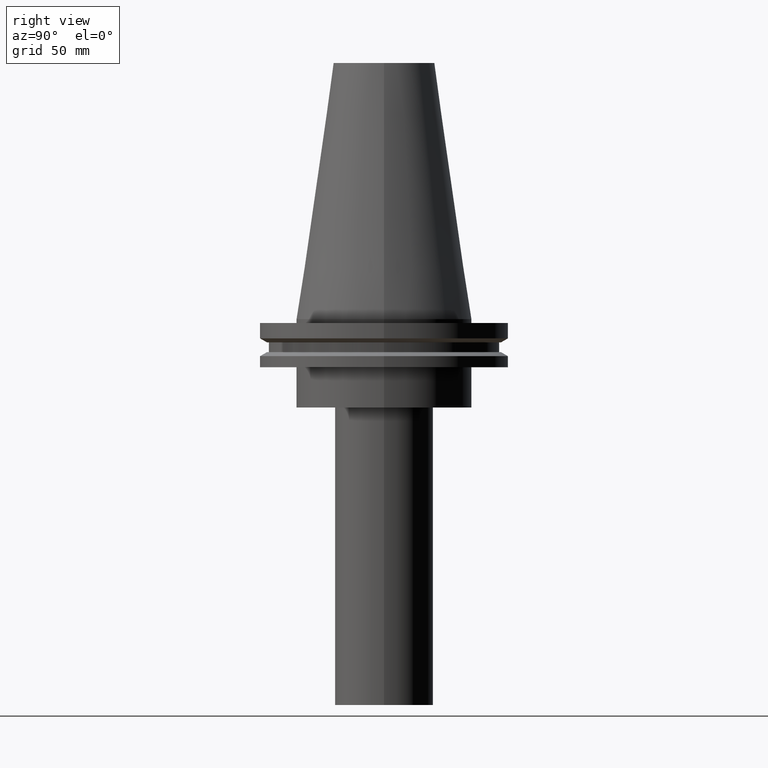
[diagram: clean part render]
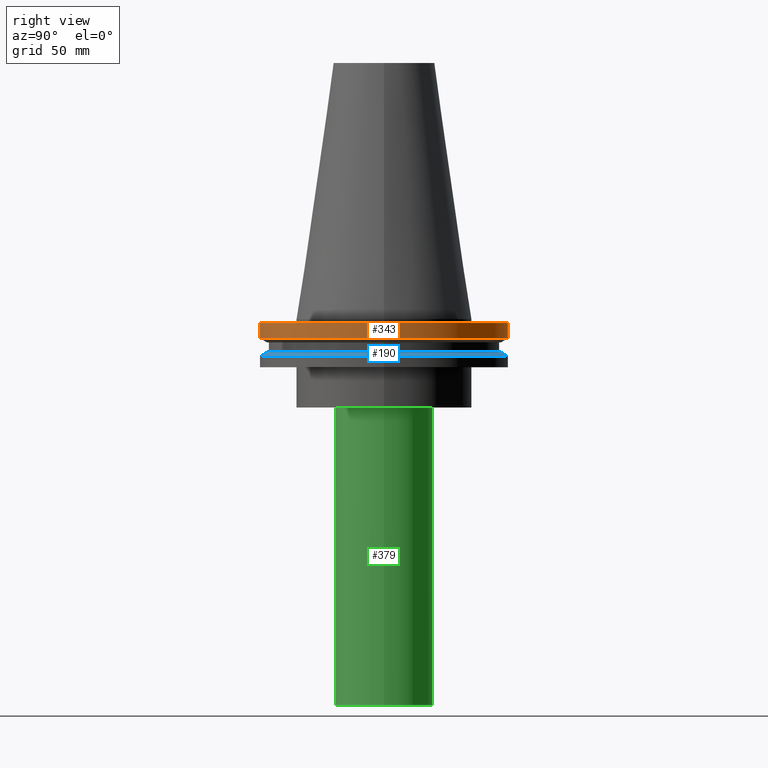
[diagram: same view with three faces highlighted in distinct colors, each labeled with its STEP entity id]
A machine part, right view with three faces highlighted in distinct colors.
Their STEP definitions:

[orange] entity #343 — the highlighted cylindrical surface (bore or boss wall) has radius 49.215 mm, axis along (-0, -0, 1).
#25 = VERTEX_POINT ( 'NONE', #182 ) ;
#40 = ORIENTED_EDGE ( 'NONE', *, *, #244, .F. ) ;
#99 = AXIS2_PLACEMENT_3D ( 'NONE', #383, #287, #284 ) ;
#123 = CYLINDRICAL_SURFACE ( 'NONE', #245, 49.21499999999999631 ) ;
#141 = AXIS2_PLACEMENT_3D ( 'NONE', #193, #336, #306 ) ;
#148 = EDGE_CURVE ( 'NONE', #325, #325, #327, .T. ) ;
#149 = EDGE_LOOP ( 'NONE', ( #185 ) ) ;
#154 = DIRECTION ( 'NONE',  ( -0.000000000000000000, -0.000000000000000000, 1.000000000000000000 ) ) ;
#182 = CARTESIAN_POINT ( 'NONE',  ( 49.21499999999999631, 0.000000000000000000, -1.499999999999987566 ) ) ;
#185 = ORIENTED_EDGE ( 'NONE', *, *, #148, .T. ) ;
#189 = CARTESIAN_POINT ( 'NONE',  ( 0.000000000000000000, 0.000000000000000000, 101.5999999999999943 ) ) ;
#193 = CARTESIAN_POINT ( 'NONE',  ( 0.000000000000000000, 0.000000000000000000, -7.602389855251287187 ) ) ;
#233 = EDGE_LOOP ( 'NONE', ( #40 ) ) ;
#244 = EDGE_CURVE ( 'NONE', #25, #25, #376, .T. ) ;
#245 = AXIS2_PLACEMENT_3D ( 'NONE', #189, #154, #282 ) ;
#282 = DIRECTION ( 'NONE',  ( 1.000000000000000000, 0.000000000000000000, 0.000000000000000000 ) ) ;
#284 = DIRECTION ( 'NONE',  ( 1.000000000000000000, 0.000000000000000000, 0.000000000000000000 ) ) ;
#287 = DIRECTION ( 'NONE',  ( -0.000000000000000000, -0.000000000000000000, 1.000000000000000000 ) ) ;
#306 = DIRECTION ( 'NONE',  ( 1.000000000000000000, 0.000000000000000000, 0.000000000000000000 ) ) ;
#325 = VERTEX_POINT ( 'NONE', #390 ) ;
#327 = CIRCLE ( 'NONE', #141, 49.21500000000000341 ) ;
#336 = DIRECTION ( 'NONE',  ( -0.000000000000000000, -0.000000000000000000, 1.000000000000000000 ) ) ;
#343 = ADVANCED_FACE ( 'NONE', ( #362, #365 ), #123, .T. ) ;
#362 = FACE_OUTER_BOUND ( 'NONE', #233, .T. ) ;
#365 = FACE_OUTER_BOUND ( 'NONE', #149, .T. ) ;
#376 = CIRCLE ( 'NONE', #99, 49.21499999999999631 ) ;
#383 = CARTESIAN_POINT ( 'NONE',  ( 0.000000000000000000, 0.000000000000000000, -1.499999999999987566 ) ) ;
#390 = CARTESIAN_POINT ( 'NONE',  ( 49.21500000000000341, 0.000000000000000000, -7.602389855251287187 ) ) ;

[blue] entity #190 — the highlighted conical surface has half-angle 60 deg.
#5 = AXIS2_PLACEMENT_3D ( 'NONE', #230, #258, #315 ) ;
#14 = CARTESIAN_POINT ( 'NONE',  ( 0.000000000000000000, 0.000000000000000000, -14.65761014474876944 ) ) ;
#17 = DIRECTION ( 'NONE',  ( -0.000000000000000000, -0.000000000000000000, 1.000000000000000000 ) ) ;
#22 = EDGE_CURVE ( 'NONE', #174, #174, #254, .T. ) ;
#49 = DIRECTION ( 'NONE',  ( 1.000000000000000000, 0.000000000000000000, 0.000000000000000000 ) ) ;
#59 = ORIENTED_EDGE ( 'NONE', *, *, #210, .T. ) ;
#77 = DIRECTION ( 'NONE',  ( -1.000000000000000000, 0.000000000000000000, 0.000000000000000000 ) ) ;
#117 = CONICAL_SURFACE ( 'NONE', #286, 49.21499999999998920, 1.047197551196554333 ) ;
#120 = CARTESIAN_POINT ( 'NONE',  ( 46.43919780457007818, 0.000000000000000000, -13.05499999999999794 ) ) ;
#134 = ORIENTED_EDGE ( 'NONE', *, *, #22, .F. ) ;
#138 = DIRECTION ( 'NONE',  ( 0.000000000000000000, 0.000000000000000000, -1.000000000000000000 ) ) ;
#142 = EDGE_LOOP ( 'NONE', ( #59 ) ) ;
#163 = FACE_BOUND ( 'NONE', #324, .T. ) ;
#174 = VERTEX_POINT ( 'NONE', #120 ) ;
#175 = CIRCLE ( 'NONE', #5, 49.21499999999998920 ) ;
#190 = ADVANCED_FACE ( 'NONE', ( #163, #201 ), #117, .T. ) ;
#201 = FACE_OUTER_BOUND ( 'NONE', #142, .T. ) ;
#210 = EDGE_CURVE ( 'NONE', #302, #302, #175, .T. ) ;
#230 = CARTESIAN_POINT ( 'NONE',  ( 0.000000000000000000, 0.000000000000000000, -14.65761014474876944 ) ) ;
#254 = CIRCLE ( 'NONE', #304, 46.43919780457007818 ) ;
#258 = DIRECTION ( 'NONE',  ( -0.000000000000000000, -0.000000000000000000, 1.000000000000000000 ) ) ;
#286 = AXIS2_PLACEMENT_3D ( 'NONE', #14, #138, #77 ) ;
#297 = CARTESIAN_POINT ( 'NONE',  ( 49.21499999999998920, 0.000000000000000000, -14.65761014474876944 ) ) ;
#302 = VERTEX_POINT ( 'NONE', #297 ) ;
#304 = AXIS2_PLACEMENT_3D ( 'NONE', #357, #17, #49 ) ;
#315 = DIRECTION ( 'NONE',  ( 1.000000000000000000, 0.000000000000000000, 0.000000000000000000 ) ) ;
#324 = EDGE_LOOP ( 'NONE', ( #134 ) ) ;
#357 = CARTESIAN_POINT ( 'NONE',  ( 0.000000000000000000, 0.000000000000000000, -13.05499999999999794 ) ) ;

[green] entity #379 — the highlighted cylindrical surface (bore or boss wall) has radius 19.5 mm, axis along (-0, -0, 1).
#1 = DIRECTION ( 'NONE',  ( 1.000000000000000000, 0.000000000000000000, 0.000000000000000000 ) ) ;
#21 = FACE_OUTER_BOUND ( 'NONE', #384, .T. ) ;
#31 = CARTESIAN_POINT ( 'NONE',  ( 19.50000000000000000, 0.000000000000000000, -35.00000000000000000 ) ) ;
#32 = DIRECTION ( 'NONE',  ( -0.000000000000000000, -0.000000000000000000, 1.000000000000000000 ) ) ;
#51 = ORIENTED_EDGE ( 'NONE', *, *, #103, .F. ) ;
#61 = EDGE_CURVE ( 'NONE', #385, #385, #349, .T. ) ;
#63 = CYLINDRICAL_SURFACE ( 'NONE', #281, 19.50000000000000000 ) ;
#66 = DIRECTION ( 'NONE',  ( -0.000000000000000000, -0.000000000000000000, 1.000000000000000000 ) ) ;
#67 = AXIS2_PLACEMENT_3D ( 'NONE', #125, #32, #369 ) ;
#81 = VERTEX_POINT ( 'NONE', #31 ) ;
#89 = CARTESIAN_POINT ( 'NONE',  ( 19.50000000000000000, 0.000000000000000000, -152.9999999999999716 ) ) ;
#103 = EDGE_CURVE ( 'NONE', #81, #81, #345, .T. ) ;
#122 = DIRECTION ( 'NONE',  ( 1.000000000000000000, 0.000000000000000000, 0.000000000000000000 ) ) ;
#125 = CARTESIAN_POINT ( 'NONE',  ( 0.000000000000000000, 0.000000000000000000, -35.00000000000000000 ) ) ;
#126 = CARTESIAN_POINT ( 'NONE',  ( 0.000000000000000000, 0.000000000000000000, -152.9999999999999716 ) ) ;
#145 = CARTESIAN_POINT ( 'NONE',  ( 0.000000000000000000, 0.000000000000000000, 0.000000000000000000 ) ) ;
#200 = AXIS2_PLACEMENT_3D ( 'NONE', #126, #66, #122 ) ;
#219 = DIRECTION ( 'NONE',  ( -0.000000000000000000, -0.000000000000000000, 1.000000000000000000 ) ) ;
#235 = ORIENTED_EDGE ( 'NONE', *, *, #61, .T. ) ;
#281 = AXIS2_PLACEMENT_3D ( 'NONE', #145, #219, #1 ) ;
#345 = CIRCLE ( 'NONE', #67, 19.50000000000000000 ) ;
#349 = CIRCLE ( 'NONE', #200, 19.50000000000000000 ) ;
#352 = EDGE_LOOP ( 'NONE', ( #235 ) ) ;
#369 = DIRECTION ( 'NONE',  ( 1.000000000000000000, 0.000000000000000000, 0.000000000000000000 ) ) ;
#370 = FACE_OUTER_BOUND ( 'NONE', #352, .T. ) ;
#379 = ADVANCED_FACE ( 'NONE', ( #21, #370 ), #63, .T. ) ;
#384 = EDGE_LOOP ( 'NONE', ( #51 ) ) ;
#385 = VERTEX_POINT ( 'NONE', #89 ) ;